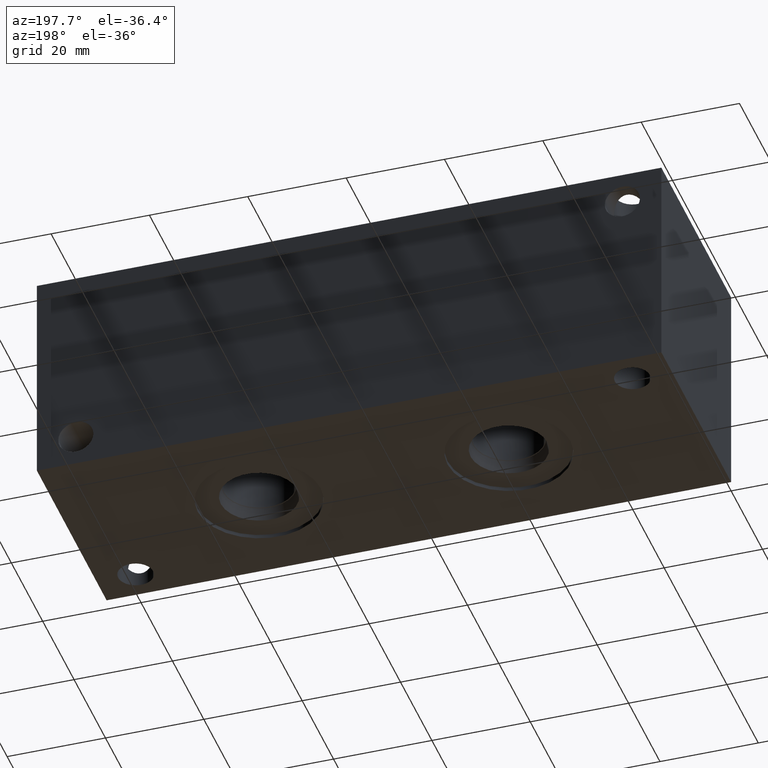
[diagram: clean part render]
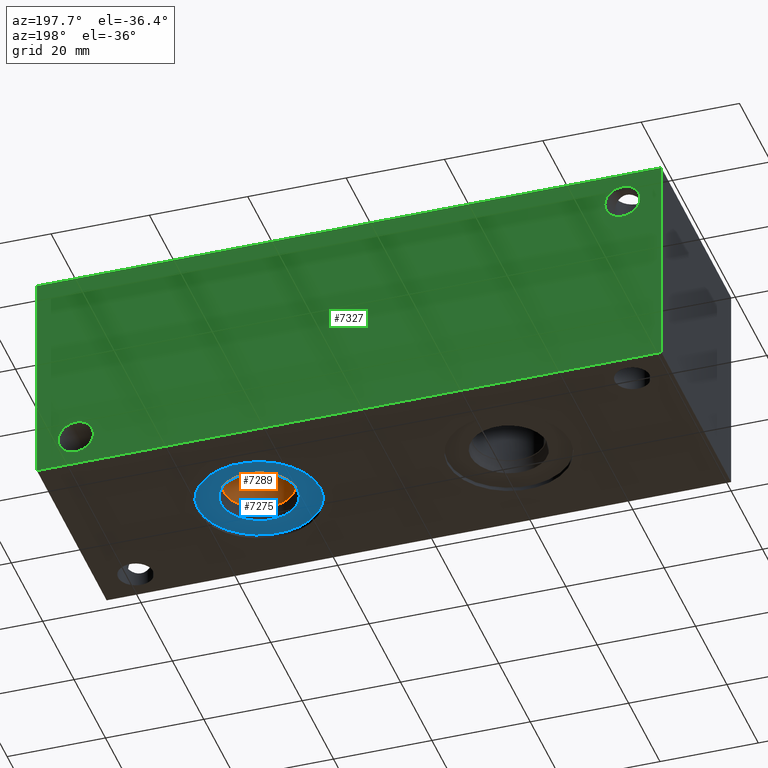
[diagram: same view with three faces highlighted in distinct colors, each labeled with its STEP entity id]
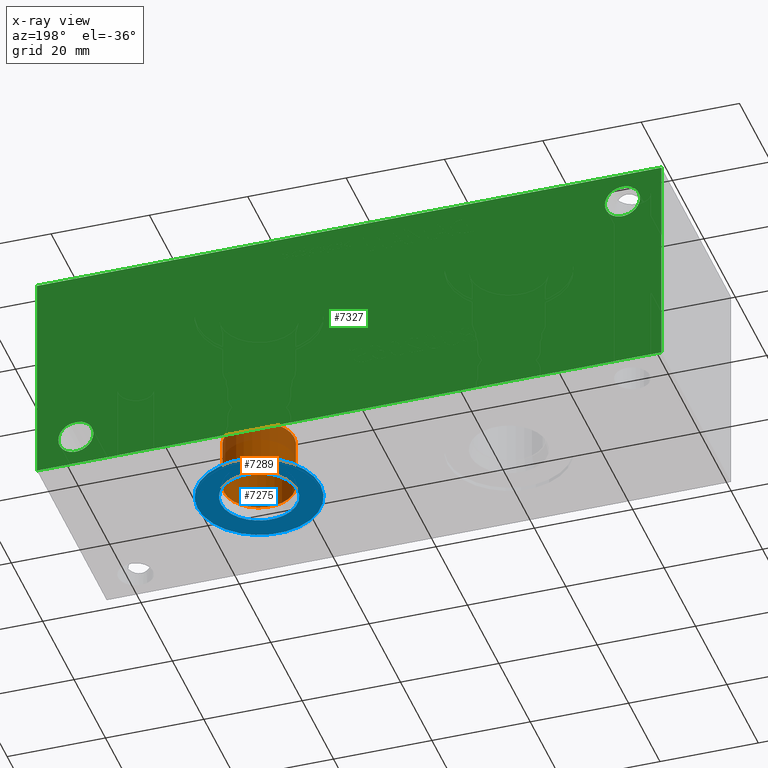
[diagram: x-ray of the same camera — body ghosted, the three highlighted faces saturated]
A machine part, auxiliary view with three faces highlighted in distinct colors.
The next image is the same camera in x-ray (body ghosted, the three faces saturated) — at least one of them is partly hidden behind the body in this view.
Their STEP definitions:

[orange] entity #7289 — the highlighted cylindrical surface (bore or boss wall) has radius 7.1374 mm, axis along (0, 0, -1).
#44=CYLINDRICAL_SURFACE('',#7599,7.1374);
#84=CIRCLE('',#7569,7.1374);
#101=CIRCLE('',#7596,7.1374);
#102=CIRCLE('',#7597,7.1374);
#879=FACE_OUTER_BOUND('',#1287,.T.);
#1287=EDGE_LOOP('',(#6212,#6213,#6214,#6215,#6216));
#1990=LINE('',#12461,#2677);
#2677=VECTOR('',#8859,7.1374);
#3313=VERTEX_POINT('',#12401);
#3330=VERTEX_POINT('',#12454);
#3331=VERTEX_POINT('',#12455);
#4280=EDGE_CURVE('',#3313,#3313,#84,.T.);
#4305=EDGE_CURVE('',#3330,#3331,#101,.T.);
#4306=EDGE_CURVE('',#3331,#3330,#102,.T.);
#4308=EDGE_CURVE('',#3313,#3331,#1990,.T.);
#6212=ORIENTED_EDGE('',*,*,#4280,.T.);
#6213=ORIENTED_EDGE('',*,*,#4308,.T.);
#6214=ORIENTED_EDGE('',*,*,#4305,.F.);
#6215=ORIENTED_EDGE('',*,*,#4306,.F.);
#6216=ORIENTED_EDGE('',*,*,#4308,.F.);
#7289=ADVANCED_FACE('',(#879),#44,.F.);
#7569=AXIS2_PLACEMENT_3D('',#12403,#8789,#8790);
#7596=AXIS2_PLACEMENT_3D('',#12456,#8851,#8852);
#7597=AXIS2_PLACEMENT_3D('',#12457,#8853,#8854);
#7599=AXIS2_PLACEMENT_3D('',#12460,#8857,#8858);
#8789=DIRECTION('center_axis',(0.,0.,-1.));
#8790=DIRECTION('ref_axis',(1.,0.,0.));
#8851=DIRECTION('center_axis',(0.,0.,-1.));
#8852=DIRECTION('ref_axis',(1.,0.,0.));
#8853=DIRECTION('center_axis',(0.,0.,-1.));
#8854=DIRECTION('ref_axis',(1.,0.,0.));
#8857=DIRECTION('center_axis',(0.,0.,-1.));
#8858=DIRECTION('ref_axis',(1.,0.,0.));
#8859=DIRECTION('',(0.,0.,1.));
#12401=CARTESIAN_POINT('',(81.7626,22.225,3.429));
#12403=CARTESIAN_POINT('Origin',(88.9,22.225,3.429));
#12454=CARTESIAN_POINT('',(96.0374,22.225,13.4874));
#12455=CARTESIAN_POINT('',(81.7626,22.225,13.4874));
#12456=CARTESIAN_POINT('Origin',(88.9,22.225,13.4874));
#12457=CARTESIAN_POINT('Origin',(88.9,22.225,13.4874));
#12460=CARTESIAN_POINT('Origin',(88.9,22.225,6.7437));
#12461=CARTESIAN_POINT('',(81.7626,22.225,6.7437));

[blue] entity #7275 — the highlighted planar face has unit normal (0, 0, 1).
#76=CIRCLE('',#7557,12.5095);
#77=CIRCLE('',#7558,12.5095);
#78=CIRCLE('',#7560,7.79780000000001);
#79=CIRCLE('',#7561,7.79780000000001);
#188=FACE_BOUND('',#1271,.T.);
#865=FACE_OUTER_BOUND('',#1270,.T.);
#1270=EDGE_LOOP('',(#6145,#6146));
#1271=EDGE_LOOP('',(#6147,#6148));
#3305=VERTEX_POINT('',#12378);
#3306=VERTEX_POINT('',#12380);
#3307=VERTEX_POINT('',#12384);
#3308=VERTEX_POINT('',#12385);
#4269=EDGE_CURVE('',#3305,#3306,#76,.T.);
#4270=EDGE_CURVE('',#3306,#3305,#77,.T.);
#4271=EDGE_CURVE('',#3307,#3308,#78,.T.);
#4272=EDGE_CURVE('',#3308,#3307,#79,.T.);
#6145=ORIENTED_EDGE('',*,*,#4270,.F.);
#6146=ORIENTED_EDGE('',*,*,#4269,.F.);
#6147=ORIENTED_EDGE('',*,*,#4271,.T.);
#6148=ORIENTED_EDGE('',*,*,#4272,.T.);
#6638=PLANE('',#7559);
#7275=ADVANCED_FACE('',(#865,#188),#6638,.F.);
#7557=AXIS2_PLACEMENT_3D('',#12381,#8762,#8763);
#7558=AXIS2_PLACEMENT_3D('',#12382,#8764,#8765);
#7559=AXIS2_PLACEMENT_3D('',#12383,#8766,#8767);
#7560=AXIS2_PLACEMENT_3D('',#12386,#8768,#8769);
#7561=AXIS2_PLACEMENT_3D('',#12387,#8770,#8771);
#8762=DIRECTION('center_axis',(0.,0.,1.));
#8763=DIRECTION('ref_axis',(1.,0.,0.));
#8764=DIRECTION('center_axis',(0.,0.,1.));
#8765=DIRECTION('ref_axis',(1.,0.,0.));
#8766=DIRECTION('center_axis',(0.,0.,1.));
#8767=DIRECTION('ref_axis',(1.,0.,0.));
#8768=DIRECTION('center_axis',(0.,0.,1.));
#8769=DIRECTION('ref_axis',(1.,0.,0.));
#8770=DIRECTION('center_axis',(0.,0.,1.));
#8771=DIRECTION('ref_axis',(1.,0.,0.));
#12378=CARTESIAN_POINT('',(76.3905,22.225,0.7874));
#12380=CARTESIAN_POINT('',(101.4095,22.225,0.7874));
#12381=CARTESIAN_POINT('Origin',(88.9,22.225,0.7874));
#12382=CARTESIAN_POINT('Origin',(88.9,22.225,0.7874));
#12383=CARTESIAN_POINT('Origin',(96.6978,22.225,0.7874));
#12384=CARTESIAN_POINT('',(96.6978,22.225,0.7874));
#12385=CARTESIAN_POINT('',(81.1022,22.225,0.787399999999998));
#12386=CARTESIAN_POINT('Origin',(88.9,22.225,0.7874));
#12387=CARTESIAN_POINT('Origin',(88.9,22.225,0.7874));

[green] entity #7327 — the highlighted planar face has unit normal (0, 1, 0).
#133=CIRCLE('',#7652,3.5687);
#136=CIRCLE('',#7661,3.5687);
#196=FACE_BOUND('',#1331,.T.);
#197=FACE_BOUND('',#1332,.T.);
#917=FACE_OUTER_BOUND('',#1330,.T.);
#1330=EDGE_LOOP('',(#6407,#6408,#6409,#6410));
#1331=EDGE_LOOP('',(#6411));
#1332=EDGE_LOOP('',(#6412));
#1599=LINE('',#11448,#2286);
#2024=LINE('',#12650,#2711);
#2025=LINE('',#12653,#2712);
#2026=LINE('',#12654,#2713);
#2286=VECTOR('',#8080,10.);
#2711=VECTOR('',#9087,10.);
#2712=VECTOR('',#9090,10.);
#2713=VECTOR('',#9091,10.);
#3031=VERTEX_POINT('',#11445);
#3032=VERTEX_POINT('',#11447);
#3364=VERTEX_POINT('',#12560);
#3369=VERTEX_POINT('',#12576);
#3389=VERTEX_POINT('',#12646);
#3391=VERTEX_POINT('',#12652);
#3863=EDGE_CURVE('',#3031,#3032,#1599,.T.);
#4358=EDGE_CURVE('',#3364,#3364,#133,.T.);
#4367=EDGE_CURVE('',#3369,#3369,#136,.T.);
#4402=EDGE_CURVE('',#3389,#3032,#2024,.T.);
#4403=EDGE_CURVE('',#3391,#3389,#2025,.T.);
#4404=EDGE_CURVE('',#3391,#3031,#2026,.T.);
#6407=ORIENTED_EDGE('',*,*,#4403,.T.);
#6408=ORIENTED_EDGE('',*,*,#4402,.T.);
#6409=ORIENTED_EDGE('',*,*,#3863,.F.);
#6410=ORIENTED_EDGE('',*,*,#4404,.F.);
#6411=ORIENTED_EDGE('',*,*,#4358,.T.);
#6412=ORIENTED_EDGE('',*,*,#4367,.T.);
#6647=PLANE('',#7697);
#7327=ADVANCED_FACE('',(#917,#196,#197),#6647,.T.);
#7652=AXIS2_PLACEMENT_3D('',#12562,#8980,#8981);
#7661=AXIS2_PLACEMENT_3D('',#12578,#9000,#9001);
#7697=AXIS2_PLACEMENT_3D('',#12651,#9088,#9089);
#8080=DIRECTION('',(-1.,0.,0.));
#8980=DIRECTION('center_axis',(0.,-1.,0.));
#8981=DIRECTION('ref_axis',(1.,0.,0.));
#9000=DIRECTION('center_axis',(0.,-1.,0.));
#9001=DIRECTION('ref_axis',(1.,0.,0.));
#9087=DIRECTION('',(0.,0.,1.));
#9088=DIRECTION('center_axis',(0.,1.,0.));
#9089=DIRECTION('ref_axis',(-1.,0.,0.));
#9090=DIRECTION('',(-1.,0.,0.));
#9091=DIRECTION('',(0.,0.,1.));
#11445=CARTESIAN_POINT('',(127.,44.45,44.45));
#11447=CARTESIAN_POINT('',(0.,44.45,44.45));
#11448=CARTESIAN_POINT('',(127.,44.45,44.45));
#12560=CARTESIAN_POINT('',(4.3561,44.45,38.1));
#12562=CARTESIAN_POINT('Origin',(7.9248,44.45,38.1));
#12576=CARTESIAN_POINT('',(115.5065,44.45,6.35));
#12578=CARTESIAN_POINT('Origin',(119.0752,44.45,6.35));
#12646=CARTESIAN_POINT('',(0.,44.45,0.));
#12650=CARTESIAN_POINT('',(0.,44.45,0.));
#12651=CARTESIAN_POINT('Origin',(127.,44.45,0.));
#12652=CARTESIAN_POINT('',(127.,44.45,0.));
#12653=CARTESIAN_POINT('',(127.,44.45,0.));
#12654=CARTESIAN_POINT('',(127.,44.45,0.));